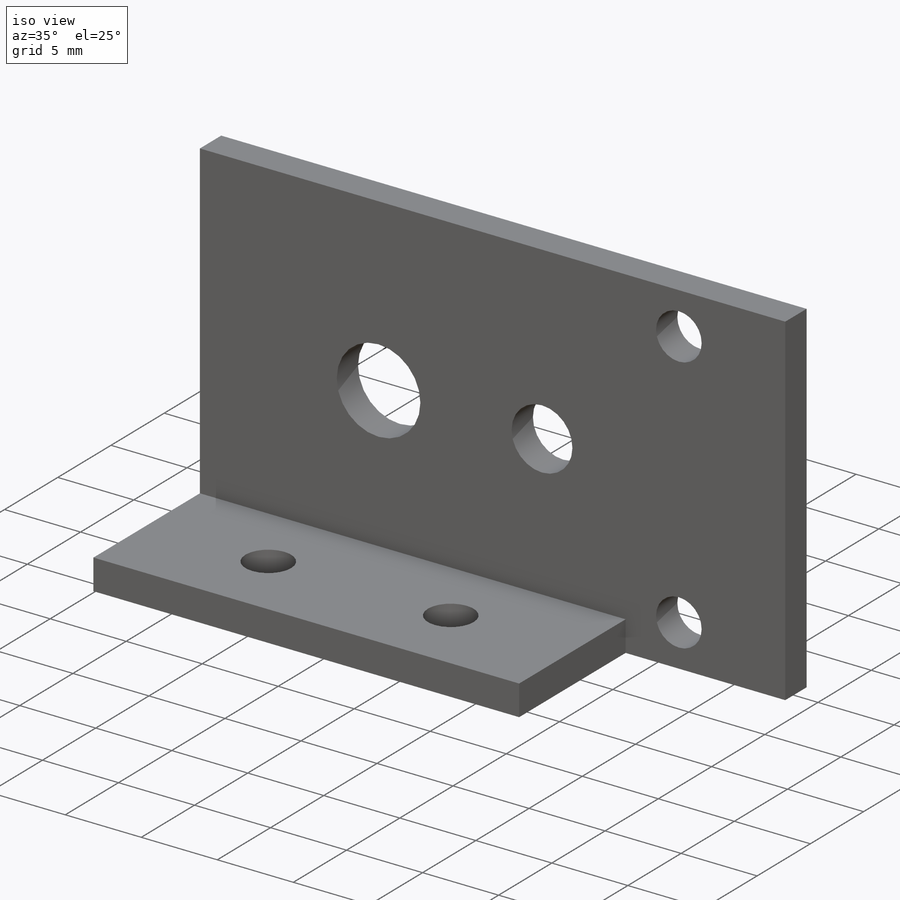
[diagram: iso view]
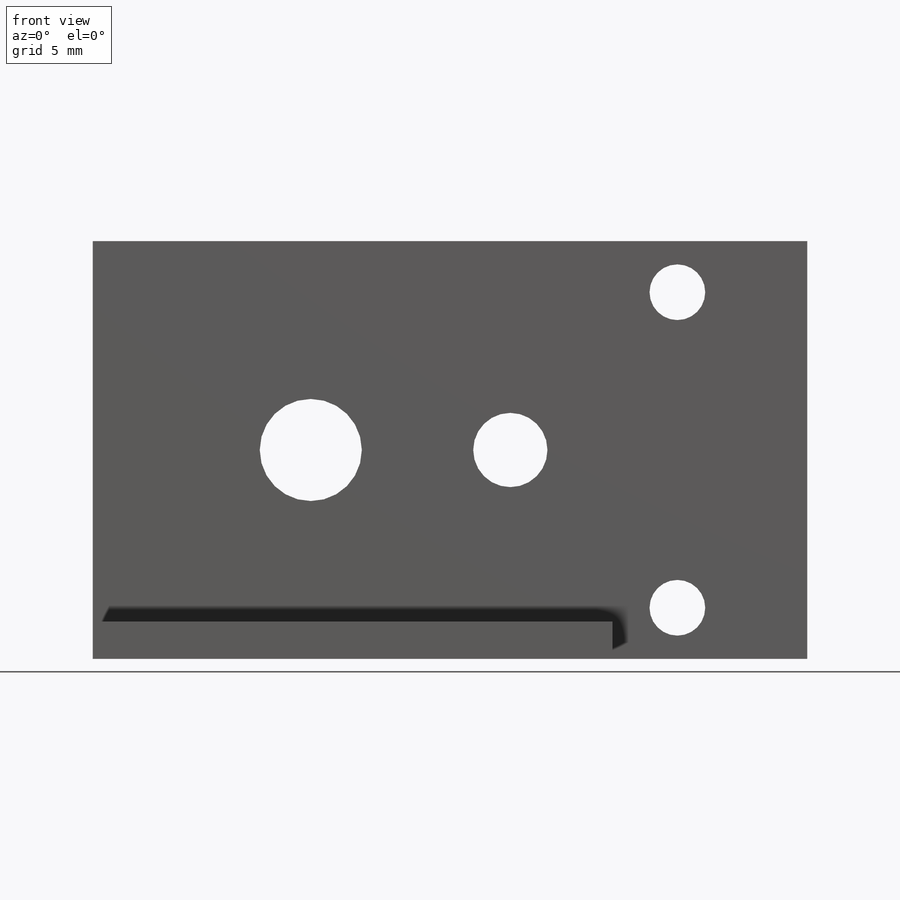
[diagram: front view]
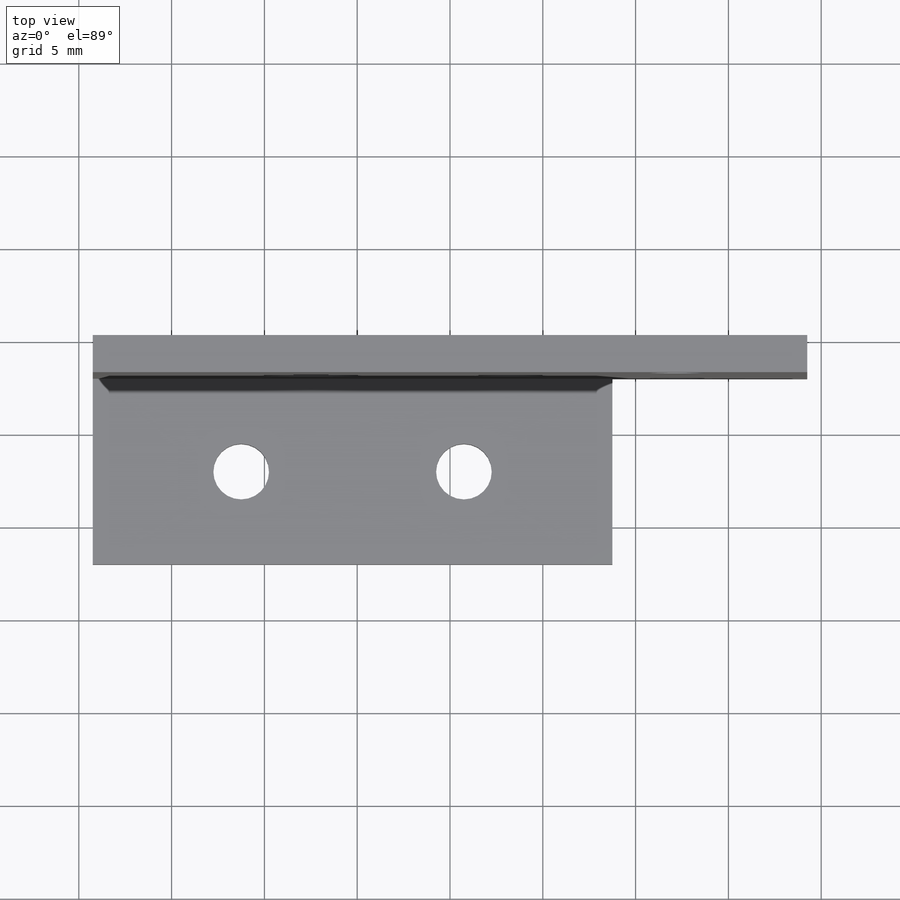
[diagram: top view]
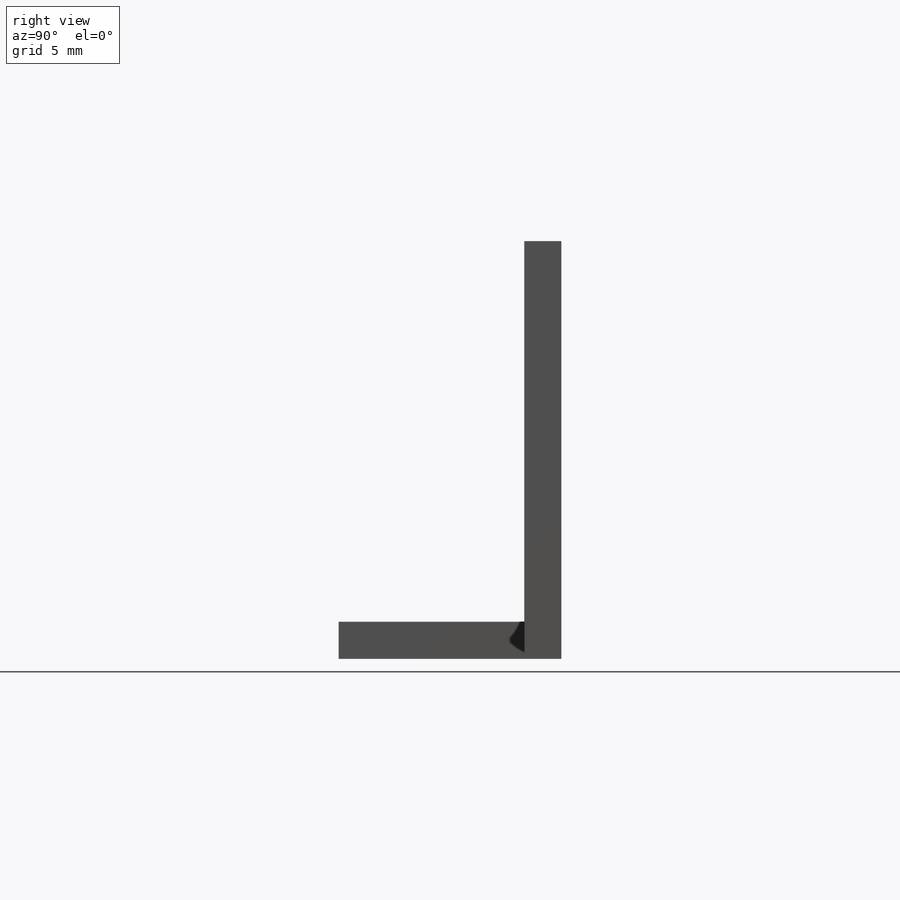
[diagram: right view]
SOLIDWORKS PART (.sldprt)
format: sldprt  version: not decoded by parser v0  size: 196,096 bytes
history: native  units: mm
features: sketch x4, plane x3, extrude x2, material x1, cut_extrude x1 (+10 scaffold rows collapsed)
feature tree (21):
  scaffold x10  (default folders/planes/origin — collapsed)
  material  "Material <not specified>"
  plane  "Спереди"
  plane  "Сверху"
  plane  "Справа"
  sketch  "Sketch1"  dims[c1.D7=3.0mm c1.D11=5.5mm c1.D12=4.0mm c1.D1=38.5mm c1.D2=22.5mm c1.D3=11.75mm c1.D4=10.75mm c1.D5=2.75mm c1.D6=2.75mm c1.D8=7.0mm c1.D9=7.0mm c1.D10=11.25mm c1.D13=4.0mm c1.D14=20.0mm c1.D15=9.25mm c1.D16=4.0mm c2.D6=2.75mm]
  extrude  "Boss-Extrude1"  Depth=2mm
  sketch  "Sketch2"  dims[D1=2.0mm D2=10.0mm]
  extrude  "Boss-Extrude2"  Depth=28mm
  sketch  "Sketch3"  dims[D1=2.0mm D2=10.0mm]
  sketch  "Sketch4"  dims[D1=3.0mm D2=3.0mm D3=5.0mm D4=8.0mm D5=5.0mm D6=8.0mm]
  cut_extrude  "Cut-Extrude1"  Depth=5mm
decode coverage: 7 of 7 modeling features carry decoded parameters
note: suppression state not decoded; provenance and decode notes live in map.json
